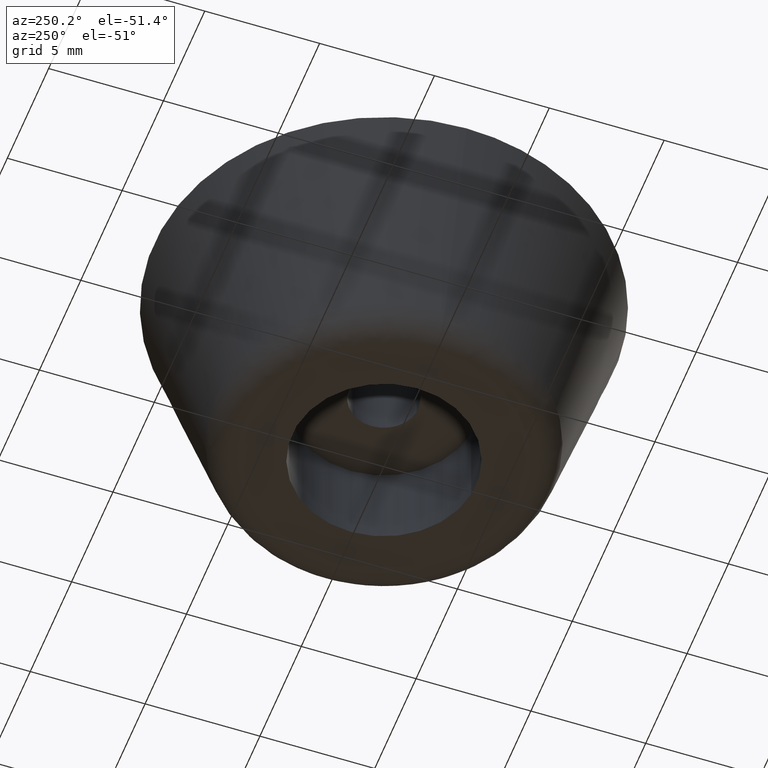
[diagram: clean part render]
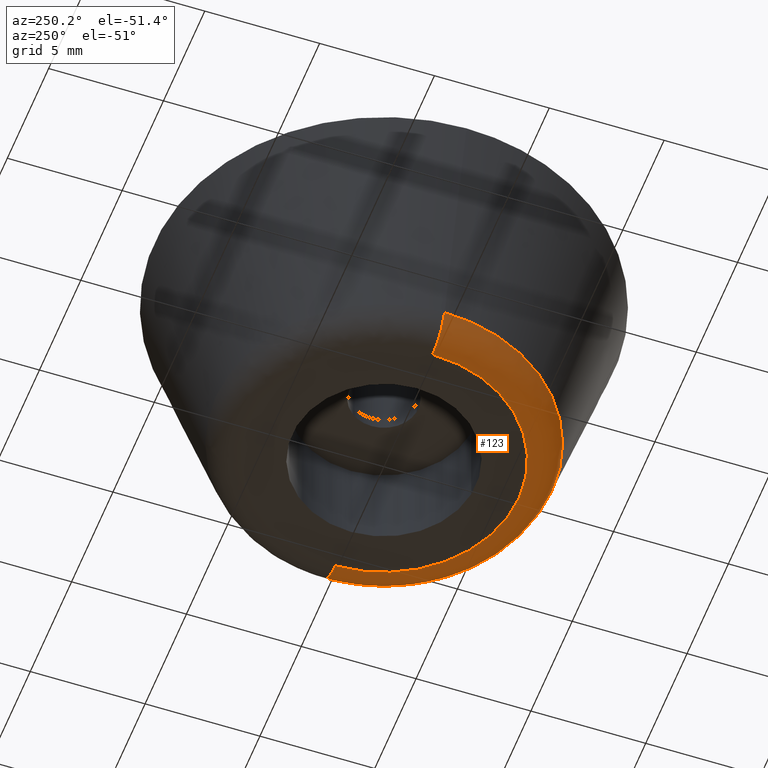
[diagram: same view with one face highlighted and labeled with its STEP entity id]
A machine part, auxiliary view. The second image highlights one B-rep face of the part: STEP entity #123.
In plain terms, the highlighted face is a freeform B-spline surface patch.
Its self-contained STEP definition (entity closure, byte-faithful):
#123=ADVANCED_FACE('',(#249),#248,.T.);
#248=( BOUNDED_SURFACE() B_SPLINE_SURFACE( 2,2,((#420,#421,#422,#423,#424),(#425,#426,#427,#428,#429),(#430,#431,#432,#433,#434),(#435,#436,#437,#438,#439),(#440,#441,#442,#443,#444)), .UNSPECIFIED.,.F.,.F.,.F.) B_SPLINE_SURFACE_WITH_KNOTS((3,2,3),(3,2,3),(0.00000000000E+000,5.00000000000E-001,1.00000000000E+000),(0.00000000000E+000,5.00000000000E-001,1.00000000000E+000), .UNSPECIFIED. ) GEOMETRIC_REPRESENTATION_ITEM() RATIONAL_B_SPLINE_SURFACE(((1.00000000000E+000,8.02292928290E-001,1.00000000000E+000,8.02292928290E-001,1.00000000000E+000),(7.07106781187E-001,5.67306770092E-001,7.07106781187E-001,5.67306770092E-001,7.07106781187E-001),(1.00000000000E+000,8.02292928290E-001,1.00000000000E+000,8.02292928290E-001,1.00000000000E+000),(7.07106781187E-001,5.67306770092E-001,7.07106781187E-001,5.67306770092E-001,7.07106781187E-001),(1.00000000000E+000,8.02292928290E-001,1.00000000000E+000,8.02292928290E-001,1.00000000000E+000))) REPRESENTATION_ITEM('') SURFACE() );
#249=FACE_OUTER_BOUND('',#445,.T.);
#420=CARTESIAN_POINT('',(-4.44721459583E+000,-1.74891904990E-015,1.06897817165E+000));
#421=CARTESIAN_POINT('',(-4.76790804733E+000,-1.08886913240E-014,5.00940143859E-014));
#422=CARTESIAN_POINT('',(-5.88395402367E+000,-1.27821011827E-014,4.97379915032E-014));
#423=CARTESIAN_POINT('',(-7.00000000000E+000,-1.46755110414E-014,4.95404893650E-014));
#424=CARTESIAN_POINT('',(-7.32069345150E+000,-6.62387340614E-015,1.06897817165E+000));
#425=CARTESIAN_POINT('',(-4.44721459583E+000,-4.44721459583E+000,1.06897817165E+000));
#426=CARTESIAN_POINT('',(-4.76790804733E+000,-4.76790804733E+000,8.84513413734E-014));
#427=CARTESIAN_POINT('',(-5.88395402367E+000,-5.88395402367E+000,9.71547837555E-014));
#428=CARTESIAN_POINT('',(-7.00000000000E+000,-7.00000000000E+000,1.05902275959E-013));
#429=CARTESIAN_POINT('',(-7.32069345150E+000,-7.32069345150E+000,1.06897817165E+000));
#430=CARTESIAN_POINT('',(7.27253706958E-015,-4.44721459583E+000,1.06897817165E+000));
#431=CARTESIAN_POINT('',(7.79696757855E-015,-4.76790804733E+000,8.85640033341E-014));
#432=CARTESIAN_POINT('',(9.62203933062E-015,-5.88395402367E+000,9.70334923522E-014));
#433=CARTESIAN_POINT('',(1.14471110827E-014,-7.00000000000E+000,1.05723278980E-013));
#434=CARTESIAN_POINT('',(1.19715415917E-014,-7.32069345150E+000,1.06897817165E+000));
#435=CARTESIAN_POINT('',(4.44721459583E+000,-4.44721459583E+000,1.06897817165E+000));
#436=CARTESIAN_POINT('',(4.76790804733E+000,-4.76790804733E+000,8.84513413734E-014));
#437=CARTESIAN_POINT('',(5.88395402367E+000,-5.88395402367E+000,9.71547837555E-014));
#438=CARTESIAN_POINT('',(7.00000000000E+000,-7.00000000000E+000,1.05902275959E-013));
#439=CARTESIAN_POINT('',(7.32069345150E+000,-7.32069345150E+000,1.06897817165E+000));
#440=CARTESIAN_POINT('',(4.44721459583E+000,1.27961550893E-014,1.06897817165E+000));
#441=CARTESIAN_POINT('',(4.76790804733E+000,4.70524383310E-015,5.00940143859E-014));
#442=CARTESIAN_POINT('',(5.88395402367E+000,6.46197747854E-015,4.97379915032E-014));
#443=CARTESIAN_POINT('',(7.00000000000E+000,8.21871112398E-015,4.95404893650E-014));
#444=CARTESIAN_POINT('',(7.32069345150E+000,1.73192097772E-014,1.06897817165E+000));
#445=EDGE_LOOP('',(#544,#545,#546,#547));
#544=ORIENTED_EDGE('',*,*,#595,.F.);
#545=ORIENTED_EDGE('',*,*,#613,.T.);
#546=ORIENTED_EDGE('',*,*,#615,.F.);
#547=ORIENTED_EDGE('',*,*,#614,.F.);
#595=EDGE_CURVE('',#705,#704,#712,.T.);
#613=EDGE_CURVE('',#705,#830,#838,.T.);
#614=EDGE_CURVE('',#704,#831,#844,.T.);
#615=EDGE_CURVE('',#831,#830,#850,.T.);
#704=VERTEX_POINT('',#952);
#705=VERTEX_POINT('',#953);
#712=CIRCLE('',#961,5.88395402367E+000);
#830=VERTEX_POINT('',#1042);
#831=VERTEX_POINT('',#1043);
#838=(BOUNDED_CURVE() B_SPLINE_CURVE(2,(#1048,#1049,#1050),.UNSPECIFIED.,.F.,.F.) B_SPLINE_CURVE_WITH_KNOTS((3,3),(5.00000000000E-001,1.00000000000E+000),.UNSPECIFIED.) CURVE() GEOMETRIC_REPRESENTATION_ITEM() RATIONAL_B_SPLINE_CURVE((1.00000000000E+000,8.02292928290E-001,1.00000000000E+000)) REPRESENTATION_ITEM('') );
#844=(BOUNDED_CURVE() B_SPLINE_CURVE(3,(#1051,#1052,#1053,#1054),.UNSPECIFIED.,.F.,.F.) B_SPLINE_CURVE_WITH_KNOTS((4,4),(4.99999966067E-001,1.00000000000E+000),.UNSPECIFIED.) CURVE() GEOMETRIC_REPRESENTATION_ITEM() RATIONAL_B_SPLINE_CURVE((1.00000000000E+000,1.00000000000E+000,1.00000000000E+000,1.00000000000E+000)) REPRESENTATION_ITEM('') );
#850=CIRCLE('',#1058,7.32069345150E+000);
#952=CARTESIAN_POINT('',(-5.88395402367E+000,-7.20552748299E-016,4.96564594998E-014));
#953=CARTESIAN_POINT('',(5.88395402367E+000,7.40148683083E-015,4.96564594998E-014));
#958=CARTESIAN_POINT('',(-1.87898600068E-015,0.00000000000E+000,4.96564594998E-014));
#959=DIRECTION('',(0.00000000000E+000,0.00000000000E+000,-1.00000000000E+000));
#960=DIRECTION('',(-1.00000000000E+000,-0.00000000000E+000,-0.00000000000E+000));
#961=AXIS2_PLACEMENT_3D('',#958,#959,#960);
#1042=CARTESIAN_POINT('',(7.32069345150E+000,-1.78467519121E-015,1.06897817165E+000));
#1043=CARTESIAN_POINT('',(-7.32069345150E+000,-5.62512999143E-015,1.06897817165E+000));
#1048=CARTESIAN_POINT('',(5.88395402367E+000,7.90313057082E-015,4.97379915032E-014));
#1049=CARTESIAN_POINT('',(7.00000000000E+000,9.93321664279E-015,4.95404893650E-014));
#1050=CARTESIAN_POINT('',(7.32069345150E+000,1.91122625378E-014,1.06897817165E+000));
#1051=CARTESIAN_POINT('',(-5.88395390213E+000,-1.39147949925E-014,5.46613871189E-014));
#1052=CARTESIAN_POINT('',(-6.59890187463E+000,-1.46383854699E-014,3.90880373155E-002));
#1053=CARTESIAN_POINT('',(-7.07781505775E+000,-1.26646557315E-014,3.95414094532E-001));
#1054=CARTESIAN_POINT('',(-7.32069345150E+000,-7.99360577730E-015,1.06897817165E+000));
#1055=CARTESIAN_POINT('',(-1.87898600068E-015,0.00000000000E+000,1.06897817165E+000));
#1056=DIRECTION('',(0.00000000000E+000,0.00000000000E+000,1.00000000000E+000));
#1057=DIRECTION('',(1.00000000000E+000,-1.21324356167E-016,-0.00000000000E+000));
#1058=AXIS2_PLACEMENT_3D('',#1055,#1056,#1057);